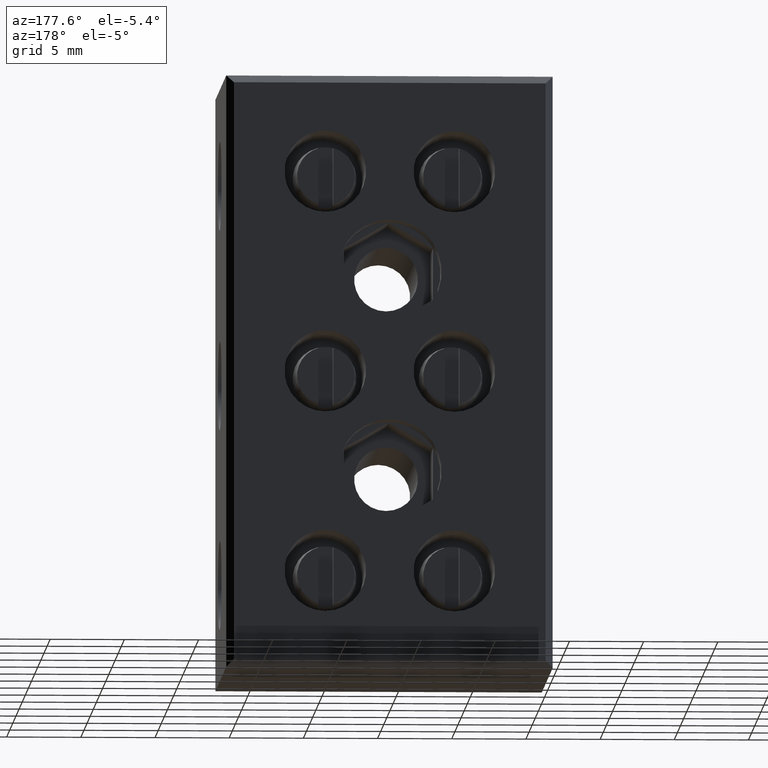
[diagram: clean part render]
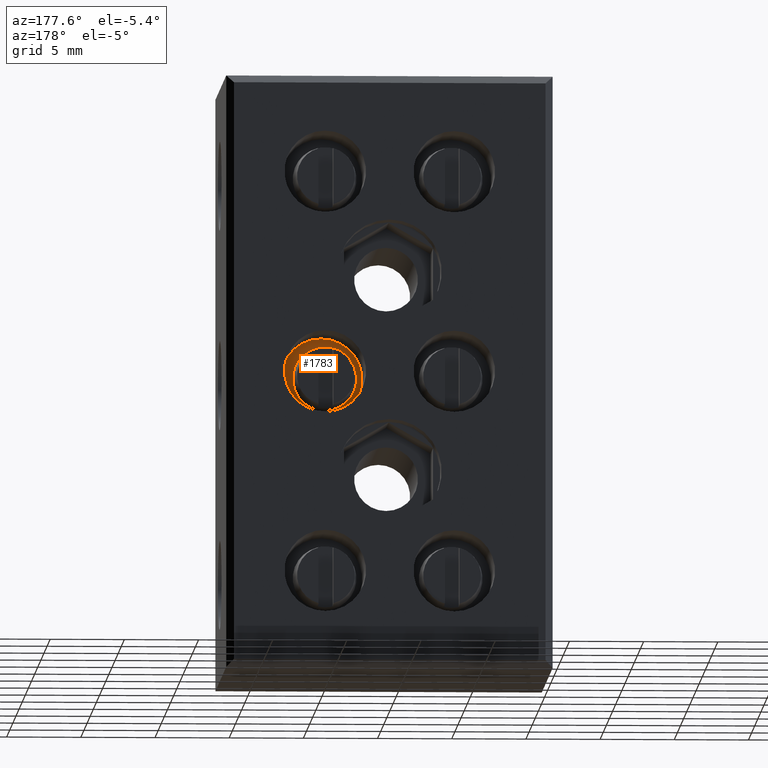
[diagram: same view with one face highlighted and labeled with its STEP entity id]
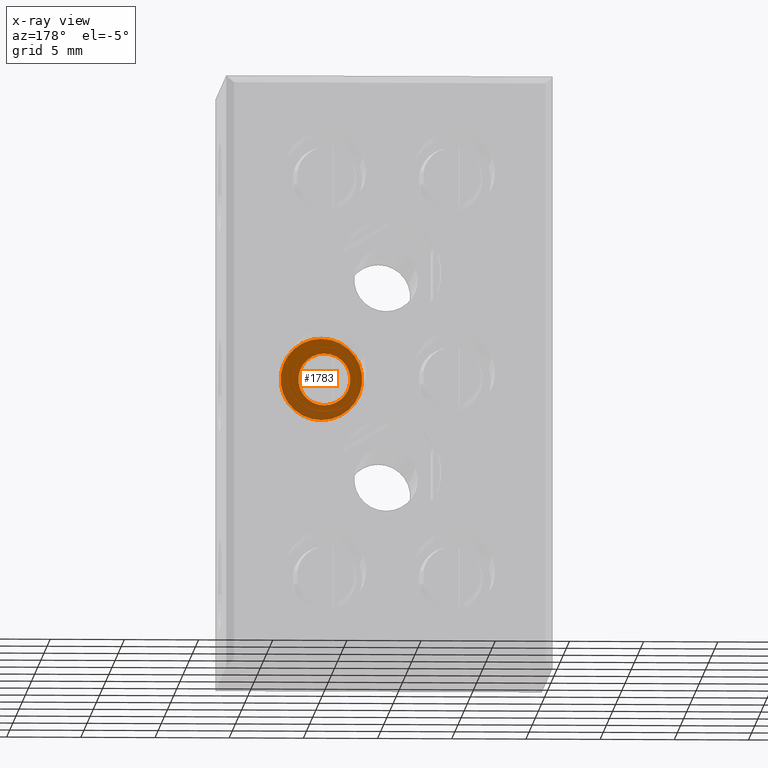
[diagram: x-ray of the same camera — body ghosted, the highlighted face saturated]
A machine part, auxiliary view. The second image highlights one B-rep face of the part: STEP entity #1783.
The next image is the same camera in x-ray: the body ghosted, the highlighted face saturated — about 25% of this face is hidden behind the body in this view.
In plain terms, the highlighted planar face has unit normal (0, 1, 0).
Its self-contained STEP definition (entity closure, byte-faithful):
#202 = EDGE_LOOP ( 'NONE', ( #4107, #4125 ) ) ;
#211 = EDGE_LOOP ( 'NONE', ( #4139, #4085 ) ) ;
#685 = VERTEX_POINT ( 'NONE', #4842 ) ;
#703 = VERTEX_POINT ( 'NONE', #4821 ) ;
#705 = VERTEX_POINT ( 'NONE', #4818 ) ;
#718 = VERTEX_POINT ( 'NONE', #4896 ) ;
#835 = EDGE_CURVE ( 'NONE', #718, #703, #2809, .T. ) ;
#920 = EDGE_CURVE ( 'NONE', #705, #685, #2903, .T. ) ;
#932 = EDGE_CURVE ( 'NONE', #703, #718, #2958, .T. ) ;
#1457 = EDGE_CURVE ( 'NONE', #685, #705, #7838, .T. ) ;
#1783 = ADVANCED_FACE ( 'NONE', ( #5856, #5824 ), #5858, .T. ) ;
#2809 = CIRCLE ( 'NONE', #2848, 1.750000000000001600 ) ;
#2848 = AXIS2_PLACEMENT_3D ( 'NONE', #5162, #5169, #5135 ) ;
#2903 = CIRCLE ( 'NONE', #2904, 2.749999999999999100 ) ;
#2904 = AXIS2_PLACEMENT_3D ( 'NONE', #5380, #5382, #5383 ) ;
#2956 = AXIS2_PLACEMENT_3D ( 'NONE', #5437, #5418, #5449 ) ;
#2958 = CIRCLE ( 'NONE', #2956, 1.750000000000001600 ) ;
#4085 = ORIENTED_EDGE ( 'NONE', *, *, #835, .T. ) ;
#4107 = ORIENTED_EDGE ( 'NONE', *, *, #920, .T. ) ;
#4125 = ORIENTED_EDGE ( 'NONE', *, *, #1457, .T. ) ;
#4139 = ORIENTED_EDGE ( 'NONE', *, *, #932, .T. ) ;
#4818 = CARTESIAN_POINT ( 'NONE',  ( 15.35000000000013600, 12.26917103431822100, -17.25000000000000400 ) ) ;
#4821 = CARTESIAN_POINT ( 'NONE',  ( 15.14999999999999000, 12.26917103431822100, -18.25000000000000400 ) ) ;
#4842 = CARTESIAN_POINT ( 'NONE',  ( 15.35000000000013600, 12.26917103431822100, -22.75000000000000400 ) ) ;
#4896 = CARTESIAN_POINT ( 'NONE',  ( 15.14999999999999000, 12.26917103431822100, -21.75000000000000700 ) ) ;
#5135 = DIRECTION ( 'NONE',  ( 0.0000000000000000000, 0.0000000000000000000, 1.000000000000000000 ) ) ;
#5162 = CARTESIAN_POINT ( 'NONE',  ( 15.14999999999999000, 12.26917103431822100, -20.00000000000000400 ) ) ;
#5169 = DIRECTION ( 'NONE',  ( -0.0000000000000000000, -1.000000000000000000, -0.0000000000000000000 ) ) ;
#5380 = CARTESIAN_POINT ( 'NONE',  ( 15.35000000000013600, 12.26917103431822100, -20.00000000000000400 ) ) ;
#5382 = DIRECTION ( 'NONE',  ( 0.0000000000000000000, 1.000000000000000000, 0.0000000000000000000 ) ) ;
#5383 = DIRECTION ( 'NONE',  ( 0.0000000000000000000, 0.0000000000000000000, 1.000000000000000000 ) ) ;
#5418 = DIRECTION ( 'NONE',  ( -0.0000000000000000000, -1.000000000000000000, -0.0000000000000000000 ) ) ;
#5437 = CARTESIAN_POINT ( 'NONE',  ( 15.14999999999999000, 12.26917103431822100, -20.00000000000000400 ) ) ;
#5449 = DIRECTION ( 'NONE',  ( 0.0000000000000000000, 0.0000000000000000000, 1.000000000000000000 ) ) ;
#5824 = FACE_OUTER_BOUND ( 'NONE', #202, .T. ) ;
#5856 = FACE_BOUND ( 'NONE', #211, .T. ) ;
#5858 = PLANE ( 'NONE',  #6933 ) ;
#5859 = CARTESIAN_POINT ( 'NONE',  ( 4.400000000000278400, 12.26917103431822100, -55.44497018701067500 ) ) ;
#5860 = DIRECTION ( 'NONE',  ( 0.0000000000000000000, 1.000000000000000000, 0.0000000000000000000 ) ) ;
#5922 = DIRECTION ( 'NONE',  ( 0.0000000000000000000, -0.0000000000000000000, 1.000000000000000000 ) ) ;
#6933 = AXIS2_PLACEMENT_3D ( 'NONE', #5859, #5860, #5922 ) ;
#7516 = DIRECTION ( 'NONE',  ( 0.0000000000000000000, 1.000000000000000000, 0.0000000000000000000 ) ) ;
#7524 = CARTESIAN_POINT ( 'NONE',  ( 15.35000000000013600, 12.26917103431822100, -20.00000000000000400 ) ) ;
#7546 = DIRECTION ( 'NONE',  ( 0.0000000000000000000, 0.0000000000000000000, 1.000000000000000000 ) ) ;
#7838 = CIRCLE ( 'NONE', #7884, 2.749999999999999100 ) ;
#7884 = AXIS2_PLACEMENT_3D ( 'NONE', #7524, #7516, #7546 ) ;